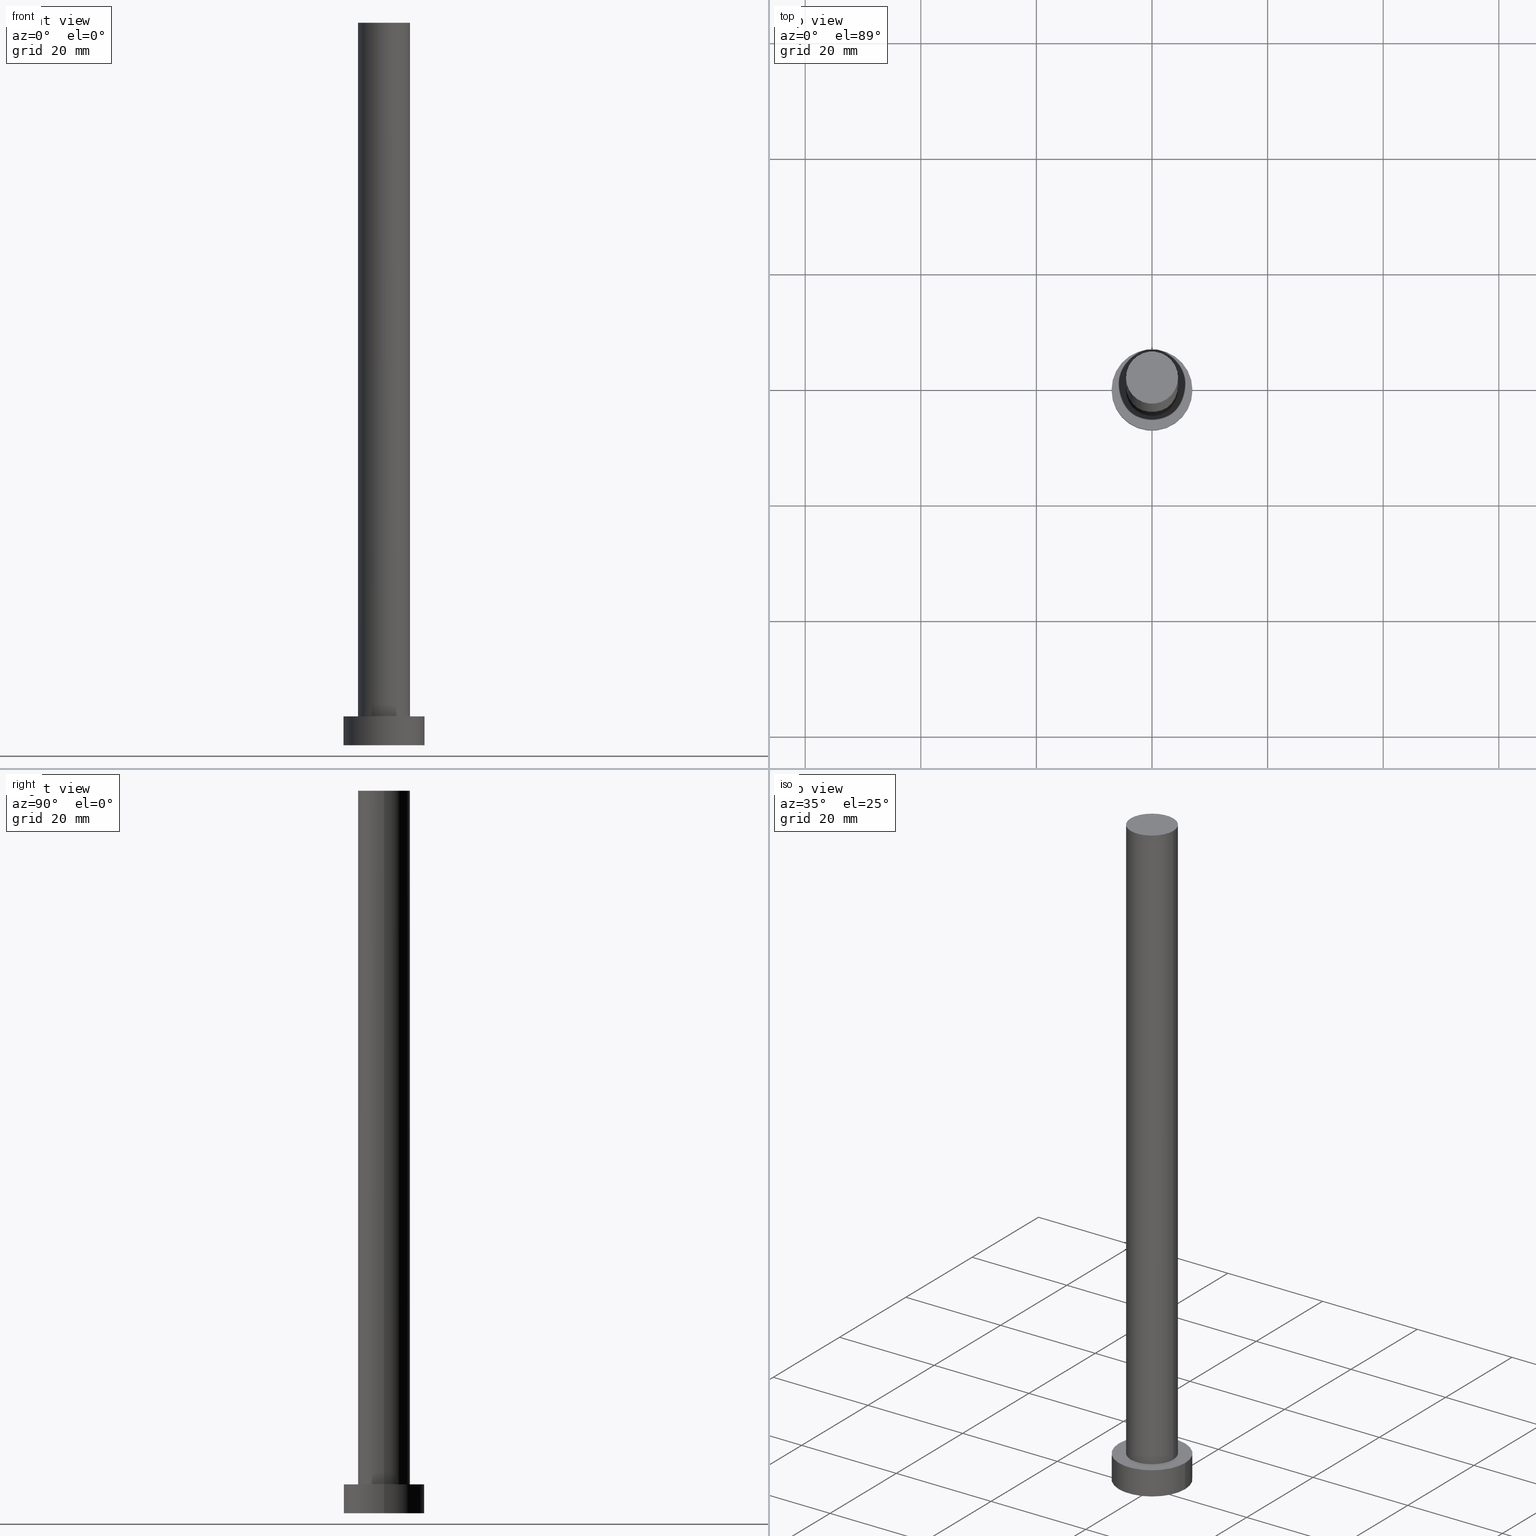
[diagram: canonical four-view strip — front | top / right | iso, engineering-drawing reading convention]
A machine part, canonical four-view strip (front | top / right | iso — engineering-drawing reading convention). The complete STEP part file that produces these views, byte-faithful:
ISO-10303-21;
HEADER;
FILE_DESCRIPTION (( 'STEP AP203' ),
    '1' );
FILE_NAME ('16a6.STEP',
    '2023-02-12T11:36:15',
    ( '' ),
    ( '' ),
    'SwSTEP 2.0',
    'SolidWorks 2019',
    '' );
FILE_SCHEMA (( 'CONFIG_CONTROL_DESIGN' ));
ENDSEC;

DATA;
#1 = VERTEX_POINT ( 'NONE', #46 ) ;
#2 = APPROVAL_ROLE ( '' ) ;
#3 = ORIENTED_EDGE ( 'NONE', *, *, #201, .T. ) ;
#4 = CIRCLE ( 'NONE', #153, 7.000000000000000000 ) ;
#5 = ORIENTED_EDGE ( 'NONE', *, *, #114, .F. ) ;
#6 = DIRECTION ( 'NONE',  ( -0.000000000000000000, -0.000000000000000000, -1.000000000000000000 ) ) ;
#7 = CARTESIAN_POINT ( 'NONE',  ( -7.000000000000000000, 0.000000000000000000, 5.000000000000000000 ) ) ;
#8 = DIRECTION ( 'NONE',  ( 1.000000000000000000, 0.000000000000000000, 0.000000000000000000 ) ) ;
#9 = CARTESIAN_POINT ( 'NONE',  ( -7.000000000000000000, 0.000000000000000000, 0.000000000000000000 ) ) ;
#10 = CYLINDRICAL_SURFACE ( 'NONE', #192, 7.000000000000000000 ) ;
#11 = EDGE_CURVE ( 'NONE', #104, #241, #99, .T. ) ;
#12 = CALENDAR_DATE ( 2023, 12, 2 ) ;
#13 = COORDINATED_UNIVERSAL_TIME_OFFSET ( 1, 0, .AHEAD. ) ;
#14 = CALENDAR_DATE ( 2023, 12, 2 ) ;
#15 = PRODUCT_DEFINITION_FORMATION_WITH_SPECIFIED_SOURCE ( 'LIBOVOLN�', '', #43, .NOT_KNOWN. ) ;
#16 = DIRECTION ( 'NONE',  ( -0.000000000000000000, -0.000000000000000000, -1.000000000000000000 ) ) ;
#17 = COORDINATED_UNIVERSAL_TIME_OFFSET ( 1, 0, .AHEAD. ) ;
#18 = CC_DESIGN_DATE_AND_TIME_ASSIGNMENT ( #250, #76, ( #65 ) ) ;
#19 = ORIENTED_EDGE ( 'NONE', *, *, #181, .F. ) ;
#20 = ADVANCED_BREP_SHAPE_REPRESENTATION ( '16a6', ( #161, #109 ), #29 ) ;
#21 = PRODUCT_DEFINITION_SHAPE ( 'NONE', 'NONE',  #65 ) ;
#22 = CARTESIAN_POINT ( 'NONE',  ( 0.000000000000000000, 0.000000000000000000, 125.0000000000000000 ) ) ;
#23 = EDGE_CURVE ( 'NONE', #164, #81, #188, .T. ) ;
#24 = ORIENTED_EDGE ( 'NONE', *, *, #140, .T. ) ;
#25 = CARTESIAN_POINT ( 'NONE',  ( -4.500000000000000888, 0.000000000000000000, 125.0000000000000000 ) ) ;
#26 = CARTESIAN_POINT ( 'NONE',  ( 0.000000000000000000, 0.000000000000000000, 5.000000000000000000 ) ) ;
#27 = EDGE_CURVE ( 'NONE', #177, #42, #112, .T. ) ;
#28 = LINE ( 'NONE', #25, #146 ) ;
#29 =( GEOMETRIC_REPRESENTATION_CONTEXT ( 3 ) GLOBAL_UNCERTAINTY_ASSIGNED_CONTEXT ( ( #204 ) ) GLOBAL_UNIT_ASSIGNED_CONTEXT ( ( #37, #136, #55 ) ) REPRESENTATION_CONTEXT ( 'NONE', 'WORKASPACE' ) );
#30 = DIRECTION ( 'NONE',  ( 1.000000000000000000, 0.000000000000000000, 0.000000000000000000 ) ) ;
#31 = CARTESIAN_POINT ( 'NONE',  ( 0.000000000000000000, 0.000000000000000000, 125.0000000000000000 ) ) ;
#32 = PERSON_AND_ORGANIZATION_ROLE ( 'classification_officer' ) ;
#33 = LOCAL_TIME ( 12, 36, 15.00000000000000000, #197 ) ;
#34 = APPLICATION_PROTOCOL_DEFINITION ( 'international standard', 'config_control_design', 1994, #67 ) ;
#35 = ADVANCED_FACE ( 'NONE', ( #208 ), #94, .T. ) ;
#36 = APPLICATION_CONTEXT ( 'configuration controlled 3d designs of mechanical parts and assemblies' ) ;
#37 =( LENGTH_UNIT ( ) NAMED_UNIT ( * ) SI_UNIT ( .MILLI., .METRE. ) );
#38 = CIRCLE ( 'NONE', #184, 7.000000000000000000 ) ;
#39 = SHAPE_DEFINITION_REPRESENTATION ( #21, #20 ) ;
#40 = DIRECTION ( 'NONE',  ( 1.000000000000000000, 0.000000000000000000, 0.000000000000000000 ) ) ;
#41 = AXIS2_PLACEMENT_3D ( 'NONE', #93, #6, #133 ) ;
#42 = VERTEX_POINT ( 'NONE', #7 ) ;
#43 = PRODUCT ( '16a6', '16a6', '', ( #119 ) ) ;
#44 = DIRECTION ( 'NONE',  ( 1.000000000000000000, 0.000000000000000000, 0.000000000000000000 ) ) ;
#45 = CC_DESIGN_PERSON_AND_ORGANIZATION_ASSIGNMENT ( #78, #198, ( #43 ) ) ;
#46 = CARTESIAN_POINT ( 'NONE',  ( -4.500000000000000888, 0.000000000000000000, 5.000000000000000000 ) ) ;
#47 = DIRECTION ( 'NONE',  ( 1.000000000000000000, 0.000000000000000000, 0.000000000000000000 ) ) ;
#48 = SECURITY_CLASSIFICATION ( '', '', #193 ) ;
#49 = CC_DESIGN_PERSON_AND_ORGANIZATION_ASSIGNMENT ( #157, #212, ( #15 ) ) ;
#50 = DIRECTION ( 'NONE',  ( 0.000000000000000000, 0.000000000000000000, 1.000000000000000000 ) ) ;
#51 = CYLINDRICAL_SURFACE ( 'NONE', #203, 7.000000000000000000 ) ;
#52 = DIRECTION ( 'NONE',  ( 1.000000000000000000, 0.000000000000000000, -0.000000000000000000 ) ) ;
#53 = PLANE ( 'NONE',  #77 ) ;
#54 = PERSON_AND_ORGANIZATION ( #71, #159 ) ;
#55 =( NAMED_UNIT ( * ) SI_UNIT ( $, .STERADIAN. ) SOLID_ANGLE_UNIT ( ) );
#56 = APPROVAL_STATUS ( 'not_yet_approved' ) ;
#57 = AXIS2_PLACEMENT_3D ( 'NONE', #202, #63, #47 ) ;
#58 = CALENDAR_DATE ( 2023, 12, 2 ) ;
#59 = ORIENTED_EDGE ( 'NONE', *, *, #140, .F. ) ;
#60 = ORIENTED_EDGE ( 'NONE', *, *, #114, .T. ) ;
#61 = CC_DESIGN_PERSON_AND_ORGANIZATION_ASSIGNMENT ( #248, #32, ( #48 ) ) ;
#62 = DIRECTION ( 'NONE',  ( 0.000000000000000000, 0.000000000000000000, 1.000000000000000000 ) ) ;
#63 = DIRECTION ( 'NONE',  ( 0.000000000000000000, 0.000000000000000000, 1.000000000000000000 ) ) ;
#64 = ORIENTED_EDGE ( 'NONE', *, *, #156, .T. ) ;
#65 = PRODUCT_DEFINITION ( 'NEZN�M�', '', #15, #124 ) ;
#66 = CARTESIAN_POINT ( 'NONE',  ( -4.500000000000000888, 0.000000000000000000, 125.0000000000000000 ) ) ;
#67 = APPLICATION_CONTEXT ( 'configuration controlled 3d designs of mechanical parts and assemblies' ) ;
#68 = DIRECTION ( 'NONE',  ( -1.000000000000000000, 0.000000000000000000, 0.000000000000000000 ) ) ;
#69 = CARTESIAN_POINT ( 'NONE',  ( 0.000000000000000000, 0.000000000000000000, 5.000000000000000000 ) ) ;
#70 = AXIS2_PLACEMENT_3D ( 'NONE', #31, #50, #191 ) ;
#71 = PERSON ( 'NEUR�EN�', 'NEUR�EN�', 'NEUR�EN�', ('NEUR�EN�'), ('NEUR�EN�'), ('NEUR�EN�') ) ;
#72 = DIRECTION ( 'NONE',  ( -0.000000000000000000, -0.000000000000000000, -1.000000000000000000 ) ) ;
#73 = APPROVAL_PERSON_ORGANIZATION ( #54, #213, #139 ) ;
#74 = PLANE ( 'NONE',  #220 ) ;
#75 = APPROVAL_ROLE ( '' ) ;
#76 = DATE_TIME_ROLE ( 'creation_date' ) ;
#77 = AXIS2_PLACEMENT_3D ( 'NONE', #247, #186, #89 ) ;
#78 = PERSON_AND_ORGANIZATION ( #71, #159 ) ;
#79 = FACE_OUTER_BOUND ( 'NONE', #108, .T. ) ;
#80 = AXIS2_PLACEMENT_3D ( 'NONE', #128, #207, #30 ) ;
#81 = VERTEX_POINT ( 'NONE', #9 ) ;
#82 = EDGE_LOOP ( 'NONE', ( #238, #19, #239, #3 ) ) ;
#83 = ADVANCED_FACE ( 'NONE', ( #230 ), #51, .T. ) ;
#84 = APPROVAL_DATE_TIME ( #222, #126 ) ;
#85 = ORIENTED_EDGE ( 'NONE', *, *, #118, .T. ) ;
#86 = CIRCLE ( 'NONE', #80, 4.500000000000000888 ) ;
#87 = EDGE_LOOP ( 'NONE', ( #60, #237 ) ) ;
#88 = ADVANCED_FACE ( 'NONE', ( #116 ), #211, .T. ) ;
#89 = DIRECTION ( 'NONE',  ( 1.000000000000000000, 0.000000000000000000, -0.000000000000000000 ) ) ;
#90 = AXIS2_PLACEMENT_3D ( 'NONE', #22, #62, #40 ) ;
#91 = CARTESIAN_POINT ( 'NONE',  ( 0.000000000000000000, 0.000000000000000000, 5.000000000000000000 ) ) ;
#92 = FACE_OUTER_BOUND ( 'NONE', #142, .T. ) ;
#93 = CARTESIAN_POINT ( 'NONE',  ( 0.000000000000000000, 0.000000000000000000, 125.0000000000000000 ) ) ;
#94 = CYLINDRICAL_SURFACE ( 'NONE', #41, 4.500000000000000888 ) ;
#95 = VECTOR ( 'NONE', #135, 1000.000000000000000 ) ;
#96 = CALENDAR_DATE ( 2023, 12, 2 ) ;
#97 = CC_DESIGN_PERSON_AND_ORGANIZATION_ASSIGNMENT ( #174, #101, ( #15 ) ) ;
#98 = DATE_AND_TIME ( #96, #132 ) ;
#99 = CIRCLE ( 'NONE', #90, 4.500000000000000888 ) ;
#100 = CYLINDRICAL_SURFACE ( 'NONE', #144, 4.500000000000000888 ) ;
#101 = PERSON_AND_ORGANIZATION_ROLE ( 'creator' ) ;
#102 = APPROVAL_STATUS ( 'not_yet_approved' ) ;
#103 = APPROVAL ( #102, 'NEUR�EN�' ) ;
#104 = VERTEX_POINT ( 'NONE', #152 ) ;
#105 = EDGE_LOOP ( 'NONE', ( #240, #5, #85, #145 ) ) ;
#106 = ADVANCED_FACE ( 'NONE', ( #170 ), #10, .T. ) ;
#107 = ORIENTED_EDGE ( 'NONE', *, *, #11, .F. ) ;
#108 = EDGE_LOOP ( 'NONE', ( #107, #223, #24, #219 ) ) ;
#109 = AXIS2_PLACEMENT_3D ( 'NONE', #123, #117, #173 ) ;
#110 = CARTESIAN_POINT ( 'NONE',  ( 0.000000000000000000, 0.000000000000000000, 5.000000000000000000 ) ) ;
#111 = DIRECTION ( 'NONE',  ( 1.000000000000000000, 0.000000000000000000, 0.000000000000000000 ) ) ;
#112 = CIRCLE ( 'NONE', #57, 7.000000000000000000 ) ;
#113 = CARTESIAN_POINT ( 'NONE',  ( 4.500000000000000888, 5.510910596163089556E-16, 5.000000000000000000 ) ) ;
#114 = EDGE_CURVE ( 'NONE', #241, #104, #86, .T. ) ;
#115 = LINE ( 'NONE', #150, #122 ) ;
#116 = FACE_OUTER_BOUND ( 'NONE', #87, .T. ) ;
#117 = DIRECTION ( 'NONE',  ( 0.000000000000000000, 0.000000000000000000, 1.000000000000000000 ) ) ;
#118 = EDGE_CURVE ( 'NONE', #241, #1, #28, .T. ) ;
#119 = MECHANICAL_CONTEXT ( 'NONE', #36, 'mechanical' ) ;
#120 = APPROVAL_DATE_TIME ( #155, #213 ) ;
#121 = APPROVAL_PERSON_ORGANIZATION ( #125, #126, #2 ) ;
#122 = VECTOR ( 'NONE', #246, 1000.000000000000000 ) ;
#123 = CARTESIAN_POINT ( 'NONE',  ( 0.000000000000000000, 0.000000000000000000, 0.000000000000000000 ) ) ;
#124 = DESIGN_CONTEXT ( 'detailed design', #67, 'design' ) ;
#125 = PERSON_AND_ORGANIZATION ( #71, #159 ) ;
#126 = APPROVAL ( #218, 'NEUR�EN�' ) ;
#127 = ORIENTED_EDGE ( 'NONE', *, *, #23, .F. ) ;
#128 = CARTESIAN_POINT ( 'NONE',  ( 0.000000000000000000, 0.000000000000000000, 125.0000000000000000 ) ) ;
#129 = CARTESIAN_POINT ( 'NONE',  ( 0.000000000000000000, 0.000000000000000000, 5.000000000000000000 ) ) ;
#130 = CARTESIAN_POINT ( 'NONE',  ( 7.000000000000000000, 8.572527594031473190E-16, 0.000000000000000000 ) ) ;
#131 = CARTESIAN_POINT ( 'NONE',  ( 4.500000000000000888, 5.510910596163089556E-16, 125.0000000000000000 ) ) ;
#132 = LOCAL_TIME ( 12, 36, 15.00000000000000000, #253 ) ;
#133 = DIRECTION ( 'NONE',  ( -1.000000000000000000, 0.000000000000000000, 0.000000000000000000 ) ) ;
#134 = PERSON_AND_ORGANIZATION ( #71, #159 ) ;
#135 = DIRECTION ( 'NONE',  ( -0.000000000000000000, -0.000000000000000000, -1.000000000000000000 ) ) ;
#136 =( NAMED_UNIT ( * ) PLANE_ANGLE_UNIT ( ) SI_UNIT ( $, .RADIAN. ) );
#137 = PERSON_AND_ORGANIZATION ( #71, #159 ) ;
#138 = EDGE_CURVE ( 'NONE', #104, #183, #243, .T. ) ;
#139 = APPROVAL_ROLE ( '' ) ;
#140 = EDGE_CURVE ( 'NONE', #183, #1, #182, .T. ) ;
#141 = ORIENTED_EDGE ( 'NONE', *, *, #201, .F. ) ;
#142 = EDGE_LOOP ( 'NONE', ( #160, #143 ) ) ;
#143 = ORIENTED_EDGE ( 'NONE', *, *, #27, .T. ) ;
#144 = AXIS2_PLACEMENT_3D ( 'NONE', #216, #16, #214 ) ;
#145 = ORIENTED_EDGE ( 'NONE', *, *, #158, .T. ) ;
#146 = VECTOR ( 'NONE', #168, 1000.000000000000000 ) ;
#147 = APPROVAL_PERSON_ORGANIZATION ( #137, #103, #75 ) ;
#148 = LINE ( 'NONE', #210, #95 ) ;
#149 = CC_DESIGN_APPROVAL ( #213, ( #65 ) ) ;
#150 = CARTESIAN_POINT ( 'NONE',  ( 7.000000000000000000, 8.572527594031473190E-16, 5.000000000000000000 ) ) ;
#151 = FACE_OUTER_BOUND ( 'NONE', #185, .T. ) ;
#152 = CARTESIAN_POINT ( 'NONE',  ( 4.500000000000000888, 5.510910596163089556E-16, 125.0000000000000000 ) ) ;
#153 = AXIS2_PLACEMENT_3D ( 'NONE', #242, #209, #169 ) ;
#154 = DIRECTION ( 'NONE',  ( 0.000000000000000000, 0.000000000000000000, 1.000000000000000000 ) ) ;
#155 = DATE_AND_TIME ( #12, #225 ) ;
#156 = EDGE_CURVE ( 'NONE', #177, #164, #115, .T. ) ;
#157 = PERSON_AND_ORGANIZATION ( #71, #159 ) ;
#158 = EDGE_CURVE ( 'NONE', #1, #183, #206, .T. ) ;
#159 = ORGANIZATION ( 'NEUR�EN�', 'NEUR�EN�', '' ) ;
#160 = ORIENTED_EDGE ( 'NONE', *, *, #181, .T. ) ;
#161 = MANIFOLD_SOLID_BREP ( 'P�idat vysunut�m3', #166 ) ;
#162 = ORIENTED_EDGE ( 'NONE', *, *, #23, .T. ) ;
#163 = CC_DESIGN_SECURITY_CLASSIFICATION ( #48, ( #15 ) ) ;
#164 = VERTEX_POINT ( 'NONE', #130 ) ;
#165 = FACE_BOUND ( 'NONE', #179, .T. ) ;
#166 = CLOSED_SHELL ( 'NONE', ( #255, #83, #106, #217, #199, #35, #88 ) ) ;
#167 = LOCAL_TIME ( 12, 36, 15.00000000000000000, #13 ) ;
#168 = DIRECTION ( 'NONE',  ( -0.000000000000000000, -0.000000000000000000, -1.000000000000000000 ) ) ;
#169 = DIRECTION ( 'NONE',  ( 1.000000000000000000, 0.000000000000000000, 0.000000000000000000 ) ) ;
#170 = FACE_OUTER_BOUND ( 'NONE', #82, .T. ) ;
#171 = DIRECTION ( 'NONE',  ( 0.000000000000000000, 0.000000000000000000, 1.000000000000000000 ) ) ;
#172 = CC_DESIGN_PERSON_AND_ORGANIZATION_ASSIGNMENT ( #134, #195, ( #65 ) ) ;
#173 = DIRECTION ( 'NONE',  ( 1.000000000000000000, 0.000000000000000000, 0.000000000000000000 ) ) ;
#174 = PERSON_AND_ORGANIZATION ( #71, #159 ) ;
#175 = CALENDAR_DATE ( 2023, 12, 2 ) ;
#176 = APPROVAL_DATE_TIME ( #194, #103 ) ;
#177 = VERTEX_POINT ( 'NONE', #190 ) ;
#178 = CC_DESIGN_APPROVAL ( #103, ( #15 ) ) ;
#179 = EDGE_LOOP ( 'NONE', ( #254, #59 ) ) ;
#180 = ORIENTED_EDGE ( 'NONE', *, *, #27, .F. ) ;
#181 = EDGE_CURVE ( 'NONE', #42, #177, #4, .T. ) ;
#182 = CIRCLE ( 'NONE', #215, 4.500000000000000888 ) ;
#183 = VERTEX_POINT ( 'NONE', #113 ) ;
#184 = AXIS2_PLACEMENT_3D ( 'NONE', #189, #228, #8 ) ;
#185 = EDGE_LOOP ( 'NONE', ( #141, #127 ) ) ;
#186 = DIRECTION ( 'NONE',  ( 0.000000000000000000, 0.000000000000000000, 1.000000000000000000 ) ) ;
#187 = DIRECTION ( 'NONE',  ( -1.000000000000000000, 0.000000000000000000, 0.000000000000000000 ) ) ;
#188 = CIRCLE ( 'NONE', #196, 7.000000000000000000 ) ;
#189 = CARTESIAN_POINT ( 'NONE',  ( 0.000000000000000000, 0.000000000000000000, 0.000000000000000000 ) ) ;
#190 = CARTESIAN_POINT ( 'NONE',  ( 7.000000000000000000, 8.572527594031473190E-16, 5.000000000000000000 ) ) ;
#191 = DIRECTION ( 'NONE',  ( 1.000000000000000000, 0.000000000000000000, -0.000000000000000000 ) ) ;
#192 = AXIS2_PLACEMENT_3D ( 'NONE', #129, #245, #68 ) ;
#193 = SECURITY_CLASSIFICATION_LEVEL ( 'unclassified' ) ;
#194 = DATE_AND_TIME ( #14, #33 ) ;
#195 = PERSON_AND_ORGANIZATION_ROLE ( 'creator' ) ;
#196 = AXIS2_PLACEMENT_3D ( 'NONE', #224, #221, #44 ) ;
#197 = COORDINATED_UNIVERSAL_TIME_OFFSET ( 1, 0, .AHEAD. ) ;
#198 = PERSON_AND_ORGANIZATION_ROLE ( 'design_owner' ) ;
#199 = ADVANCED_FACE ( 'NONE', ( #151 ), #53, .F. ) ;
#200 = EDGE_LOOP ( 'NONE', ( #180, #64, #162, #205 ) ) ;
#201 = EDGE_CURVE ( 'NONE', #81, #164, #38, .T. ) ;
#202 = CARTESIAN_POINT ( 'NONE',  ( 0.000000000000000000, 0.000000000000000000, 5.000000000000000000 ) ) ;
#203 = AXIS2_PLACEMENT_3D ( 'NONE', #91, #231, #187 ) ;
#204 = UNCERTAINTY_MEASURE_WITH_UNIT (LENGTH_MEASURE( 1.000000000000000082E-05 ), #37, 'distance_accuracy_value', 'NONE');
#205 = ORIENTED_EDGE ( 'NONE', *, *, #244, .F. ) ;
#206 = CIRCLE ( 'NONE', #251, 4.500000000000000888 ) ;
#207 = DIRECTION ( 'NONE',  ( 0.000000000000000000, 0.000000000000000000, 1.000000000000000000 ) ) ;
#208 = FACE_OUTER_BOUND ( 'NONE', #105, .T. ) ;
#209 = DIRECTION ( 'NONE',  ( 0.000000000000000000, 0.000000000000000000, 1.000000000000000000 ) ) ;
#210 = CARTESIAN_POINT ( 'NONE',  ( -7.000000000000000000, 0.000000000000000000, 5.000000000000000000 ) ) ;
#211 = PLANE ( 'NONE',  #70 ) ;
#212 = PERSON_AND_ORGANIZATION_ROLE ( 'design_supplier' ) ;
#213 = APPROVAL ( #56, 'NEUR�EN�' ) ;
#214 = DIRECTION ( 'NONE',  ( -1.000000000000000000, 0.000000000000000000, 0.000000000000000000 ) ) ;
#215 = AXIS2_PLACEMENT_3D ( 'NONE', #26, #171, #111 ) ;
#216 = CARTESIAN_POINT ( 'NONE',  ( 0.000000000000000000, 0.000000000000000000, 125.0000000000000000 ) ) ;
#217 = ADVANCED_FACE ( 'NONE', ( #165, #92 ), #74, .T. ) ;
#218 = APPROVAL_STATUS ( 'not_yet_approved' ) ;
#219 = ORIENTED_EDGE ( 'NONE', *, *, #118, .F. ) ;
#220 = AXIS2_PLACEMENT_3D ( 'NONE', #69, #154, #52 ) ;
#221 = DIRECTION ( 'NONE',  ( 0.000000000000000000, 0.000000000000000000, 1.000000000000000000 ) ) ;
#222 = DATE_AND_TIME ( #58, #232 ) ;
#223 = ORIENTED_EDGE ( 'NONE', *, *, #138, .T. ) ;
#224 = CARTESIAN_POINT ( 'NONE',  ( 0.000000000000000000, 0.000000000000000000, 0.000000000000000000 ) ) ;
#225 = LOCAL_TIME ( 12, 36, 15.00000000000000000, #234 ) ;
#226 = DIRECTION ( 'NONE',  ( 1.000000000000000000, 0.000000000000000000, 0.000000000000000000 ) ) ;
#227 = DIRECTION ( 'NONE',  ( 0.000000000000000000, 0.000000000000000000, 1.000000000000000000 ) ) ;
#228 = DIRECTION ( 'NONE',  ( 0.000000000000000000, 0.000000000000000000, 1.000000000000000000 ) ) ;
#229 = VECTOR ( 'NONE', #72, 1000.000000000000000 ) ;
#230 = FACE_OUTER_BOUND ( 'NONE', #200, .T. ) ;
#231 = DIRECTION ( 'NONE',  ( -0.000000000000000000, -0.000000000000000000, -1.000000000000000000 ) ) ;
#232 = LOCAL_TIME ( 12, 36, 15.00000000000000000, #17 ) ;
#233 = APPLICATION_PROTOCOL_DEFINITION ( 'international standard', 'config_control_design', 1994, #36 ) ;
#234 = COORDINATED_UNIVERSAL_TIME_OFFSET ( 1, 0, .AHEAD. ) ;
#235 = DATE_TIME_ROLE ( 'classification_date' ) ;
#236 = CC_DESIGN_DATE_AND_TIME_ASSIGNMENT ( #98, #235, ( #48 ) ) ;
#237 = ORIENTED_EDGE ( 'NONE', *, *, #11, .T. ) ;
#238 = ORIENTED_EDGE ( 'NONE', *, *, #156, .F. ) ;
#239 = ORIENTED_EDGE ( 'NONE', *, *, #244, .T. ) ;
#240 = ORIENTED_EDGE ( 'NONE', *, *, #138, .F. ) ;
#241 = VERTEX_POINT ( 'NONE', #66 ) ;
#242 = CARTESIAN_POINT ( 'NONE',  ( 0.000000000000000000, 0.000000000000000000, 5.000000000000000000 ) ) ;
#243 = LINE ( 'NONE', #131, #229 ) ;
#244 = EDGE_CURVE ( 'NONE', #42, #81, #148, .T. ) ;
#245 = DIRECTION ( 'NONE',  ( -0.000000000000000000, -0.000000000000000000, -1.000000000000000000 ) ) ;
#246 = DIRECTION ( 'NONE',  ( -0.000000000000000000, -0.000000000000000000, -1.000000000000000000 ) ) ;
#247 = CARTESIAN_POINT ( 'NONE',  ( 0.000000000000000000, 0.000000000000000000, 0.000000000000000000 ) ) ;
#248 = PERSON_AND_ORGANIZATION ( #71, #159 ) ;
#249 = CC_DESIGN_APPROVAL ( #126, ( #48 ) ) ;
#250 = DATE_AND_TIME ( #175, #167 ) ;
#251 = AXIS2_PLACEMENT_3D ( 'NONE', #110, #227, #226 ) ;
#252 = PRODUCT_RELATED_PRODUCT_CATEGORY ( 'detail', '', ( #43 ) ) ;
#253 = COORDINATED_UNIVERSAL_TIME_OFFSET ( 1, 0, .AHEAD. ) ;
#254 = ORIENTED_EDGE ( 'NONE', *, *, #158, .F. ) ;
#255 = ADVANCED_FACE ( 'NONE', ( #79 ), #100, .T. ) ;
ENDSEC;
END-ISO-10303-21;
